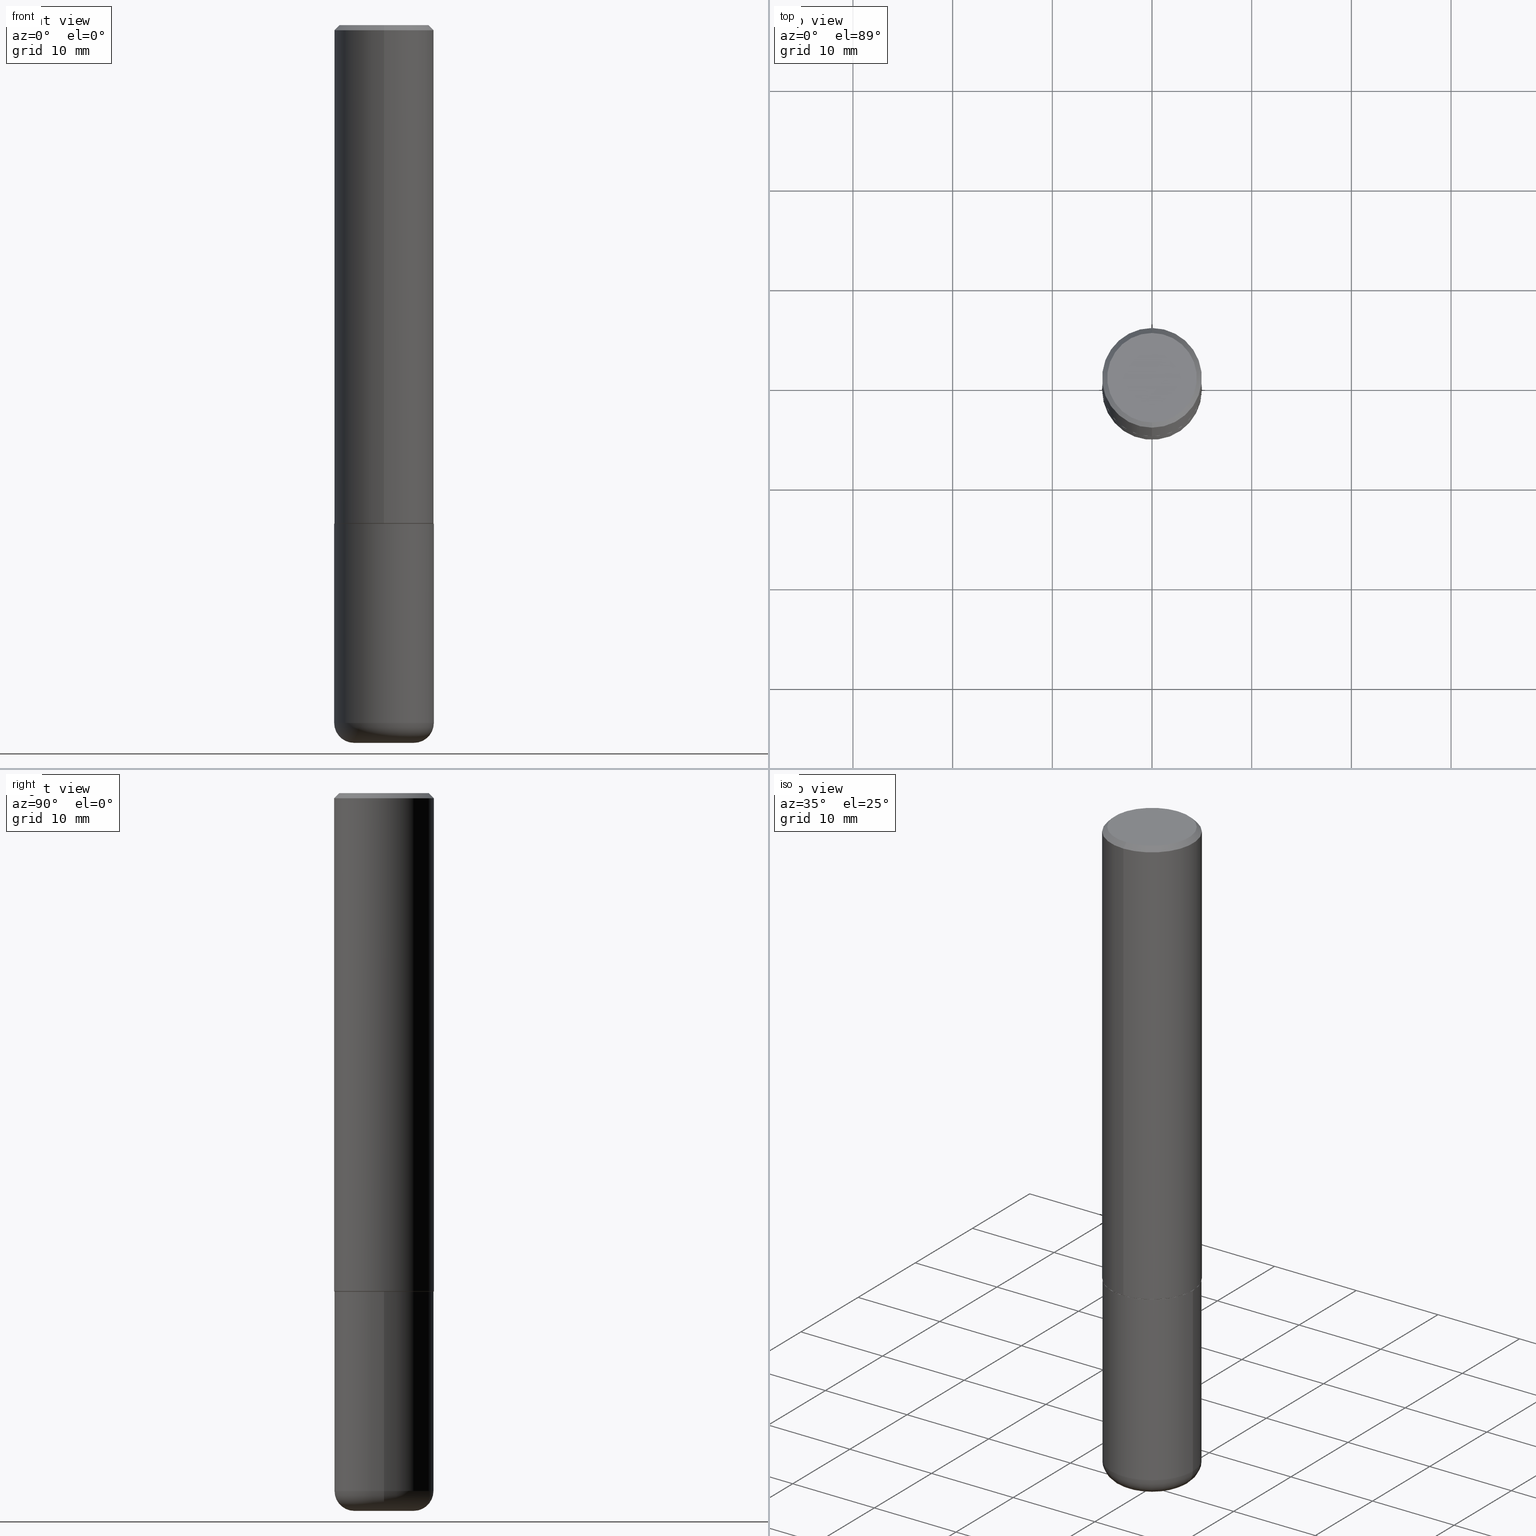
[diagram: canonical four-view strip — front | top / right | iso, engineering-drawing reading convention]
A machine part, canonical four-view strip (front | top / right | iso — engineering-drawing reading convention). The complete STEP part file that produces these views, byte-faithful:
ISO-10303-21;
HEADER;
FILE_DESCRIPTION (( 'STEP AP203' ),
    '1' );
FILE_NAME ('46890.STEP',
    '2024-03-05T06:12:10',
    ( '' ),
    ( '' ),
    'SwSTEP 2.0',
    'SolidWorks 2023',
    '' );
FILE_SCHEMA (( 'CONFIG_CONTROL_DESIGN' ));
ENDSEC;

DATA;
#1 = CARTESIAN_POINT ( 'NONE',  ( 0.1968500000000000250, -1.374596203102541608E-15, 9.598753983154300858E-30 ) ) ;
#2 = EDGE_CURVE ( 'NONE', #107, #362, #76, .T. ) ;
#3 = COORDINATED_UNIVERSAL_TIME_OFFSET ( 5, 0, .BEHIND. ) ;
#4 = CARTESIAN_POINT ( 'NONE',  ( 1.234936949548816590E-15, 0.1768500000000000627, -6.366182382972411724E-16 ) ) ;
#5 = AXIS2_PLACEMENT_3D ( 'NONE', #159, #407, #84 ) ;
#6 = APPROVAL_PERSON_ORGANIZATION ( #358, #256, #382 ) ;
#7 = APPLICATION_PROTOCOL_DEFINITION ( 'international standard', 'config_control_design', 1994, #355 ) ;
#8 = APPROVAL_ROLE ( '' ) ;
#9 = ORIENTED_EDGE ( 'NONE', *, *, #80, .F. ) ;
#10 = CARTESIAN_POINT ( 'NONE',  ( 1.374596203102542003E-15, 0.1968499999999999417, -0.02000000000000072900 ) ) ;
#11 = APPLICATION_PROTOCOL_DEFINITION ( 'international standard', 'config_control_design', 1994, #120 ) ;
#12 = ADVANCED_FACE ( 'NONE', ( #112 ), #283, .F. ) ;
#13 = ORIENTED_EDGE ( 'NONE', *, *, #2, .F. ) ;
#14 = CARTESIAN_POINT ( 'NONE',  ( 0.000000000000000000, 0.000000000000000000, 0.000000000000000000 ) ) ;
#15 = CLOSED_SHELL ( 'NONE', ( #117, #285, #160, #145, #329, #124, #259, #56 ) ) ;
#16 = CARTESIAN_POINT ( 'NONE',  ( -1.367613240424807079E-15, -0.1958500000000068797, -1.968499999999999028 ) ) ;
#17 = DIRECTION ( 'NONE',  ( 6.982962677686265922E-15, 1.000000000000000000, -3.490819278536432204E-15 ) ) ;
#18 = DIRECTION ( 'NONE',  ( 1.000000000000000000, -6.982962677686265922E-15, 4.876176775795935793E-29 ) ) ;
#19 = ORIENTED_EDGE ( 'NONE', *, *, #337, .F. ) ;
#20 = CC_DESIGN_DATE_AND_TIME_ASSIGNMENT ( #171, #275, ( #333 ) ) ;
#21 = ORIENTED_EDGE ( 'NONE', *, *, #404, .F. ) ;
#22 = AXIS2_PLACEMENT_3D ( 'NONE', #262, #392, #241 ) ;
#23 = DIRECTION ( 'NONE',  ( 2.445931120426352427E-29, -3.490819278536432204E-15, -1.000000000000000000 ) ) ;
#24 = EDGE_CURVE ( 'NONE', #341, #277, #289, .T. ) ;
#25 = EDGE_LOOP ( 'NONE', ( #43, #177, #338, #395 ) ) ;
#26 = ORIENTED_EDGE ( 'NONE', *, *, #69, .F. ) ;
#27 = CARTESIAN_POINT ( 'NONE',  ( -1.350489030861325429E-15, -0.1968500000000000805, -0.01999999999999935510 ) ) ;
#28 = CYLINDRICAL_SURFACE ( 'NONE', #30, 0.1968500000000001082 ) ;
#29 = FACE_OUTER_BOUND ( 'NONE', #248, .T. ) ;
#30 = AXIS2_PLACEMENT_3D ( 'NONE', #38, #237, #67 ) ;
#31 = CC_DESIGN_SECURITY_CLASSIFICATION ( #333, ( #99 ) ) ;
#32 = CARTESIAN_POINT ( 'NONE',  ( 1.398703375343782834E-15, 0.1968499999999934191, -1.967500000000000471 ) ) ;
#33 = ORIENTED_EDGE ( 'NONE', *, *, #408, .T. ) ;
#34 = DIRECTION ( 'NONE',  ( -2.445931120426352427E-29, 3.490819278536432204E-15, 1.000000000000000000 ) ) ;
#35 = CARTESIAN_POINT ( 'NONE',  ( 0.1181500000000000189, -1.072199004345341108E-14, -2.834599999999999120 ) ) ;
#36 = DIRECTION ( 'NONE',  ( 2.438088387897960049E-29, -3.491481338843145188E-15, -1.000000000000000000 ) ) ;
#37 = CIRCLE ( 'NONE', #332, 0.1958499999999999963 ) ;
#38 = CARTESIAN_POINT ( 'NONE',  ( 0.000000000000000000, 0.000000000000000000, 0.000000000000000000 ) ) ;
#39 = EDGE_CURVE ( 'NONE', #189, #149, #37, .T. ) ;
#40 = PERSON_AND_ORGANIZATION ( #219, #306 ) ;
#41 = MANIFOLD_SOLID_BREP ( 'Body-Move/Copy2[2]', #15 ) ;
#42 = LOCAL_TIME ( 1, 12, 10.00000000000000000, #400 ) ;
#43 = ORIENTED_EDGE ( 'NONE', *, *, #167, .F. ) ;
#44 = ORIENTED_EDGE ( 'NONE', *, *, #360, .T. ) ;
#45 = PERSON_AND_ORGANIZATION ( #219, #306 ) ;
#46 = CC_DESIGN_DATE_AND_TIME_ASSIGNMENT ( #108, #331, ( #208 ) ) ;
#47 = APPROVAL_DATE_TIME ( #139, #393 ) ;
#48 = AXIS2_PLACEMENT_3D ( 'NONE', #350, #254, #229 ) ;
#49 = AXIS2_PLACEMENT_3D ( 'NONE', #165, #413, #414 ) ;
#50 = AXIS2_PLACEMENT_3D ( 'NONE', #14, #244, #71 ) ;
#51 = ADVANCED_FACE ( 'NONE', ( #62 ), #168, .T. ) ;
#52 = EDGE_LOOP ( 'NONE', ( #316, #54 ) ) ;
#53 = DESIGN_CONTEXT ( 'detailed design', #120, 'design' ) ;
#54 = ORIENTED_EDGE ( 'NONE', *, *, #218, .T. ) ;
#55 = VERTEX_POINT ( 'NONE', #319 ) ;
#56 = ADVANCED_FACE ( 'NONE', ( #131 ), #96, .F. ) ;
#57 = AXIS2_PLACEMENT_3D ( 'NONE', #144, #274, #153 ) ;
#58 = LOCAL_TIME ( 1, 12, 10.00000000000000000, #267 ) ;
#59 = CYLINDRICAL_SURFACE ( 'NONE', #105, 0.1968500000000000250 ) ;
#60 = DIRECTION ( 'NONE',  ( -2.445468806185136877E-29, 3.491481338843145188E-15, 1.000000000000000000 ) ) ;
#61 = FACE_OUTER_BOUND ( 'NONE', #25, .T. ) ;
#62 = FACE_OUTER_BOUND ( 'NONE', #351, .T. ) ;
#63 = PLANE ( 'NONE',  #173 ) ;
#64 = EDGE_LOOP ( 'NONE', ( #178, #345, #9, #142 ) ) ;
#65 = ADVANCED_FACE ( 'NONE', ( #29 ), #59, .T. ) ;
#66 = DIRECTION ( 'NONE',  ( 1.000000000000000000, -6.982962677686269077E-15, 4.883557194083113462E-29 ) ) ;
#67 = DIRECTION ( 'NONE',  ( -6.982962677686265922E-15, -1.000000000000000000, 3.490819278536432204E-15 ) ) ;
#68 = DIRECTION ( 'NONE',  ( 7.105427357601001859E-15, 1.000000000000000000, -3.491481338843145583E-15 ) ) ;
#69 = EDGE_CURVE ( 'NONE', #149, #277, #375, .T. ) ;
#70 = VECTOR ( 'NONE', #83, 39.37007874015748143 ) ;
#71 = DIRECTION ( 'NONE',  ( 1.000000000000000000, 0.000000000000000000, 0.000000000000000000 ) ) ;
#72 = ORIENTED_EDGE ( 'NONE', *, *, #415, .T. ) ;
#73 = EDGE_CURVE ( 'NONE', #102, #363, #98, .T. ) ;
#74 = CIRCLE ( 'NONE', #384, 0.1968500000000000250 ) ;
#75 = APPROVAL_PERSON_ORGANIZATION ( #101, #311, #8 ) ;
#76 = LINE ( 'NONE', #10, #417 ) ;
#77 = PERSON_AND_ORGANIZATION ( #219, #306 ) ;
#78 = EDGE_LOOP ( 'NONE', ( #296, #227 ) ) ;
#79 = CALENDAR_DATE ( 2024, 5, 3 ) ;
#80 = EDGE_CURVE ( 'NONE', #340, #55, #339, .T. ) ;
#81 = AXIS2_PLACEMENT_3D ( 'NONE', #4, #298, #17 ) ;
#82 = APPROVAL_PERSON_ORGANIZATION ( #336, #393, #369 ) ;
#83 = DIRECTION ( 'NONE',  ( -4.937700262164969294E-15, -0.7071067811866054154, 0.7071067811864896191 ) ) ;
#84 = DIRECTION ( 'NONE',  ( 6.982962677686265133E-15, 1.000000000000000000, -3.491137977679279424E-15 ) ) ;
#85 = EDGE_CURVE ( 'NONE', #189, #341, #397, .T. ) ;
#86 = AXIS2_PLACEMENT_3D ( 'NONE', #290, #418, #291 ) ;
#87 = EDGE_LOOP ( 'NONE', ( #21, #303 ) ) ;
#88 = DIRECTION ( 'NONE',  ( -2.445468806185136597E-29, 3.491481338843145583E-15, 1.000000000000000000 ) ) ;
#89 = CC_DESIGN_PERSON_AND_ORGANIZATION_ASSIGNMENT ( #45, #182, ( #99 ) ) ;
#90 = COORDINATED_UNIVERSAL_TIME_OFFSET ( 5, 0, .BEHIND. ) ;
#91 = DIRECTION ( 'NONE',  ( -2.445468806185136597E-29, 3.491481338843145583E-15, 1.000000000000000000 ) ) ;
#92 = AXIS2_PLACEMENT_3D ( 'NONE', #357, #34, #164 ) ;
#93 = CARTESIAN_POINT ( 'NONE',  ( 4.812369479438847265E-29, -6.868186930520428742E-15, -1.967499999999999805 ) ) ;
#94 = EDGE_CURVE ( 'NONE', #368, #340, #154, .T. ) ;
#95 = DIRECTION ( 'NONE',  ( -1.000000000000000000, 6.982962677686265922E-15, -4.876176775795935793E-29 ) ) ;
#96 = PLANE ( 'NONE',  #81 ) ;
#97 = CARTESIAN_POINT ( 'NONE',  ( 6.739467482965618232E-29, -9.622173421717824390E-15, -2.755900000000000016 ) ) ;
#98 = CIRCLE ( 'NONE', #313, 0.1968500000000000250 ) ;
#99 = PRODUCT_DEFINITION_FORMATION_WITH_SPECIFIED_SOURCE ( 'ANY', '', #190, .NOT_KNOWN. ) ;
#100 = DATE_AND_TIME ( #335, #106 ) ;
#101 = PERSON_AND_ORGANIZATION ( #219, #306 ) ;
#102 = VERTEX_POINT ( 'NONE', #328 ) ;
#103 = CARTESIAN_POINT ( 'NONE',  ( 1.391597947986204111E-15, 0.1958499999999931407, -1.968500000000000583 ) ) ;
#104 = PERSON_AND_ORGANIZATION_ROLE ( 'creator' ) ;
#105 = AXIS2_PLACEMENT_3D ( 'NONE', #187, #199, #18 ) ;
#106 = LOCAL_TIME ( 1, 12, 10.00000000000000000, #3 ) ;
#107 = VERTEX_POINT ( 'NONE', #176 ) ;
#108 = DATE_AND_TIME ( #264, #58 ) ;
#109 = ORIENTED_EDGE ( 'NONE', *, *, #73, .F. ) ;
#110 = ORIENTED_EDGE ( 'NONE', *, *, #249, .F. ) ;
#111 = EDGE_CURVE ( 'NONE', #363, #102, #273, .T. ) ;
#112 = FACE_OUTER_BOUND ( 'NONE', #183, .T. ) ;
#113 = ORIENTED_EDGE ( 'NONE', *, *, #367, .T. ) ;
#114 = APPROVAL_STATUS ( 'not_yet_approved' ) ;
#115 = VECTOR ( 'NONE', #252, 39.37007874015748143 ) ;
#116 = CARTESIAN_POINT ( 'NONE',  ( -1.367613240424807079E-15, -0.1958500000000068797, -1.968499999999999028 ) ) ;
#117 = ADVANCED_FACE ( 'NONE', ( #222 ), #279, .T. ) ;
#118 = ORIENTED_EDGE ( 'NONE', *, *, #24, .F. ) ;
#119 = AXIS2_PLACEMENT_3D ( 'NONE', #197, #320, #226 ) ;
#120 = APPLICATION_CONTEXT ( 'configuration controlled 3d designs of mechanical parts and assemblies' ) ;
#121 = AXIS2_PLACEMENT_3D ( 'NONE', #166, #68, #386 ) ;
#122 = DIRECTION ( 'NONE',  ( -6.982962677686265922E-15, -1.000000000000000000, 4.184602492209747448E-15 ) ) ;
#123 = DIRECTION ( 'NONE',  ( -6.982962677686265922E-15, -1.000000000000000000, 4.184602492209747448E-15 ) ) ;
#124 = ADVANCED_FACE ( 'NONE', ( #352 ), #401, .T. ) ;
#125 = CARTESIAN_POINT ( 'NONE',  ( 6.739467482965618232E-29, -9.622173421717824390E-15, -2.755900000000000016 ) ) ;
#126 = DIRECTION ( 'NONE',  ( -2.445931120426352427E-29, 3.490819278536432204E-15, 1.000000000000000000 ) ) ;
#127 = ORIENTED_EDGE ( 'NONE', *, *, #39, .T. ) ;
#128 = DIRECTION ( 'NONE',  ( 1.000000000000000000, -6.982962677686265922E-15, 0.000000000000000000 ) ) ;
#129 = CARTESIAN_POINT ( 'NONE',  ( -1.374596203102495065E-15, -0.1968500000000071026, -1.967499999999998916 ) ) ;
#130 = CIRCLE ( 'NONE', #365, 0.1768500000000000627 ) ;
#131 = FACE_OUTER_BOUND ( 'NONE', #52, .T. ) ;
#132 = ADVANCED_FACE ( 'NONE', ( #228 ), #157, .T. ) ;
#133 = DIRECTION ( 'NONE',  ( -6.982962677686265133E-15, -1.000000000000000000, 3.491137977679279424E-15 ) ) ;
#134 = DIRECTION ( 'NONE',  ( -2.445468806185136597E-29, 3.491481338843145583E-15, 1.000000000000000000 ) ) ;
#135 = VERTEX_POINT ( 'NONE', #373 ) ;
#136 = CARTESIAN_POINT ( 'NONE',  ( 4.891862240852715644E-31, -6.981638557072878903E-17, -0.02000000000000004205 ) ) ;
#137 = AXIS2_PLACEMENT_3D ( 'NONE', #152, #126, #122 ) ;
#138 = VECTOR ( 'NONE', #257, 39.37007874015748143 ) ;
#139 = DATE_AND_TIME ( #270, #169 ) ;
#140 = ORIENTED_EDGE ( 'NONE', *, *, #337, .T. ) ;
#141 = PERSON_AND_ORGANIZATION ( #219, #306 ) ;
#142 = ORIENTED_EDGE ( 'NONE', *, *, #94, .F. ) ;
#143 = DIRECTION ( 'NONE',  ( -2.445468806185136877E-29, 3.491481338843145188E-15, 1.000000000000000000 ) ) ;
#144 = CARTESIAN_POINT ( 'NONE',  ( 4.813905344975441835E-29, -6.872981015512731707E-15, -1.968500000000000139 ) ) ;
#145 = ADVANCED_FACE ( 'NONE', ( #61 ), #305, .T. ) ;
#146 = AXIS2_PLACEMENT_3D ( 'NONE', #377, #278, #123 ) ;
#147 = DIRECTION ( 'NONE',  ( 4.937700262164541731E-15, 0.7071067811865442421, -0.7071067811865507924 ) ) ;
#148 = CALENDAR_DATE ( 2024, 5, 3 ) ;
#149 = VERTEX_POINT ( 'NONE', #116 ) ;
#150 = ORIENTED_EDGE ( 'NONE', *, *, #367, .F. ) ;
#151 = EDGE_LOOP ( 'NONE', ( #370, #268, #163, #13 ) ) ;
#152 = CARTESIAN_POINT ( 'NONE',  ( 4.814815410559274308E-29, -6.871677749798965977E-15, -1.968499999999999694 ) ) ;
#153 = DIRECTION ( 'NONE',  ( 1.000000000000000000, -6.982962677686267499E-15, 0.000000000000000000 ) ) ;
#154 = CIRCLE ( 'NONE', #379, 0.07869999999999970075 ) ;
#155 = UNCERTAINTY_MEASURE_WITH_UNIT (LENGTH_MEASURE( 1.000000000000000082E-05 ), #396, 'distance_accuracy_value', 'NONE');
#156 = ORIENTED_EDGE ( 'NONE', *, *, #24, .T. ) ;
#157 = CYLINDRICAL_SURFACE ( 'NONE', #405, 0.1968500000000000250 ) ;
#158 = ORIENTED_EDGE ( 'NONE', *, *, #80, .T. ) ;
#159 = CARTESIAN_POINT ( 'NONE',  ( 4.891862240852715644E-31, -6.981638557072878903E-17, -0.02000000000000004205 ) ) ;
#160 = ADVANCED_FACE ( 'NONE', ( #343 ), #204, .T. ) ;
#161 = CARTESIAN_POINT ( 'NONE',  ( -1.374596203102542200E-15, -0.1968500000000001082, 6.871677749798970513E-16 ) ) ;
#162 = ORIENTED_EDGE ( 'NONE', *, *, #111, .F. ) ;
#163 = ORIENTED_EDGE ( 'NONE', *, *, #249, .T. ) ;
#164 = DIRECTION ( 'NONE',  ( -6.982962677686265922E-15, -1.000000000000000000, 3.490819278536432204E-15 ) ) ;
#165 = CARTESIAN_POINT ( 'NONE',  ( 4.814815410559274869E-29, -6.871677749798965977E-15, -1.968500000000000139 ) ) ;
#166 = CARTESIAN_POINT ( 'NONE',  ( -0.1181500000000000050, -8.782667179417266182E-15, -2.755900000000000016 ) ) ;
#167 = EDGE_CURVE ( 'NONE', #216, #135, #292, .T. ) ;
#168 = TOROIDAL_SURFACE ( 'NONE', #194, 0.1181500000000000050, 0.07869999999999967299 ) ;
#169 = LOCAL_TIME ( 1, 12, 10.00000000000000000, #293 ) ;
#170 = DIRECTION ( 'NONE',  ( -6.982962677686265922E-15, -1.000000000000000000, 4.163344669033670112E-15 ) ) ;
#171 = DATE_AND_TIME ( #148, #42 ) ;
#172 = CC_DESIGN_PERSON_AND_ORGANIZATION_ASSIGNMENT ( #141, #104, ( #99 ) ) ;
#173 = AXIS2_PLACEMENT_3D ( 'NONE', #321, #309, #95 ) ;
#174 = CIRCLE ( 'NONE', #121, 0.07869999999999970075 ) ;
#175 = ORIENTED_EDGE ( 'NONE', *, *, #69, .T. ) ;
#176 = CARTESIAN_POINT ( 'NONE',  ( 1.304766576325679099E-15, 0.1768500000000000627, -6.558850871853143044E-16 ) ) ;
#177 = ORIENTED_EDGE ( 'NONE', *, *, #347, .F. ) ;
#178 = ORIENTED_EDGE ( 'NONE', *, *, #307, .T. ) ;
#179 = SECURITY_CLASSIFICATION_LEVEL ( 'unclassified' ) ;
#180 = EDGE_CURVE ( 'NONE', #362, #135, #74, .T. ) ;
#181 = DIMENSIONAL_EXPONENTS ( 1.000000000000000000, 0.000000000000000000, 0.000000000000000000, 0.000000000000000000, 0.000000000000000000, 0.000000000000000000, 0.000000000000000000 ) ;
#182 = PERSON_AND_ORGANIZATION_ROLE ( 'design_supplier' ) ;
#183 = EDGE_LOOP ( 'NONE', ( #184, #403 ) ) ;
#184 = ORIENTED_EDGE ( 'NONE', *, *, #111, .T. ) ;
#185 = FACE_OUTER_BOUND ( 'NONE', #64, .T. ) ;
#186 = PRODUCT_RELATED_PRODUCT_CATEGORY ( 'detail', '', ( #190 ) ) ;
#187 = CARTESIAN_POINT ( 'NONE',  ( 0.000000000000000000, 0.000000000000000000, 0.000000000000000000 ) ) ;
#188 = CARTESIAN_POINT ( 'NONE',  ( 4.891862240852715644E-31, -6.981638557072878903E-17, -0.02000000000000004205 ) ) ;
#189 = VERTEX_POINT ( 'NONE', #215 ) ;
#190 = PRODUCT ( '46890', '46890', '', ( #211 ) ) ;
#191 = CARTESIAN_POINT ( 'NONE',  ( 0.000000000000000000, 0.000000000000000000, 0.000000000000000000 ) ) ;
#192 = DIRECTION ( 'NONE',  ( -6.982962677686265133E-15, -1.000000000000000000, 3.491137977679279424E-15 ) ) ;
#193 = DIRECTION ( 'NONE',  ( 1.000000000000000000, -6.982962677686265922E-15, 4.876176775795935793E-29 ) ) ;
#194 = AXIS2_PLACEMENT_3D ( 'NONE', #261, #207, #325 ) ;
#195 = LINE ( 'NONE', #161, #281 ) ;
#196 = VERTEX_POINT ( 'NONE', #366 ) ;
#197 = CARTESIAN_POINT ( 'NONE',  ( 4.812369479438847265E-29, -6.868186930520428742E-15, -1.967499999999999805 ) ) ;
#198 = PLANE ( 'NONE',  #49 ) ;
#199 = DIRECTION ( 'NONE',  ( -2.445468806185136597E-29, 3.491481338843145583E-15, 1.000000000000000000 ) ) ;
#200 = DIRECTION ( 'NONE',  ( -1.000000000000000000, 6.982962677686265922E-15, -4.876176775795935793E-29 ) ) ;
#201 = CC_DESIGN_PERSON_AND_ORGANIZATION_ASSIGNMENT ( #40, #238, ( #333 ) ) ;
#202 = FACE_OUTER_BOUND ( 'NONE', #87, .T. ) ;
#203 = LINE ( 'NONE', #1, #239 ) ;
#204 = CONICAL_SURFACE ( 'NONE', #371, 0.1968500000000000250, 0.7853981633974471688 ) ;
#205 = CIRCLE ( 'NONE', #359, 0.1968500000000000250 ) ;
#206 = ORIENTED_EDGE ( 'NONE', *, *, #399, .T. ) ;
#207 = DIRECTION ( 'NONE',  ( -2.445468806185136597E-29, 3.491481338843145583E-15, 1.000000000000000000 ) ) ;
#208 = PRODUCT_DEFINITION ( 'UNKNOWN', '', #99, #53 ) ;
#209 = DIRECTION ( 'NONE',  ( -6.982962677686266711E-15, -1.000000000000000000, 3.491481338843145583E-15 ) ) ;
#210 = CARTESIAN_POINT ( 'NONE',  ( -0.1968500000000000250, 1.398703375343757393E-15, -9.682923725166783677E-30 ) ) ;
#211 = MECHANICAL_CONTEXT ( 'NONE', #355, 'mechanical' ) ;
#212 = AXIS2_PLACEMENT_3D ( 'NONE', #284, #91, #128 ) ;
#213 = DIRECTION ( 'NONE',  ( -6.982962677686265922E-15, -1.000000000000000000, 3.490819278536432204E-15 ) ) ;
#214 = APPROVAL_STATUS ( 'not_yet_approved' ) ;
#215 = CARTESIAN_POINT ( 'NONE',  ( 1.395150661665005404E-15, 0.1958499999999931407, -1.968500000000000583 ) ) ;
#216 = VERTEX_POINT ( 'NONE', #416 ) ;
#217 = ORIENTED_EDGE ( 'NONE', *, *, #374, .F. ) ;
#218 = EDGE_CURVE ( 'NONE', #216, #107, #130, .T. ) ;
#219 = PERSON ( 'UNSPECIFIED', 'UNSPECIFIED', 'UNSPECIFIED', ('UNSPECIFIED'), ('UNSPECIFIED'), ('UNSPECIFIED') ) ;
#220 = EDGE_LOOP ( 'NONE', ( #251, #127, #175, #118 ) ) ;
#221 = ORIENTED_EDGE ( 'NONE', *, *, #245, .F. ) ;
#222 = FACE_OUTER_BOUND ( 'NONE', #230, .T. ) ;
#223 = CIRCLE ( 'NONE', #240, 0.1968500000000000250 ) ;
#224 = CC_DESIGN_APPROVAL ( #311, ( #99 ) ) ;
#225 = ADVANCED_FACE ( 'NONE', ( #185 ), #294, .T. ) ;
#226 = DIRECTION ( 'NONE',  ( -6.982962677686265922E-15, -1.000000000000000000, 4.163344669033670112E-15 ) ) ;
#227 = ORIENTED_EDGE ( 'NONE', *, *, #360, .F. ) ;
#228 = FACE_OUTER_BOUND ( 'NONE', #295, .T. ) ;
#229 = DIRECTION ( 'NONE',  ( -6.982962677686265922E-15, -1.000000000000000000, 3.490819278536432204E-15 ) ) ;
#230 = EDGE_LOOP ( 'NONE', ( #246, #300, #247, #26 ) ) ;
#231 = SHAPE_DEFINITION_REPRESENTATION ( #299, #302 ) ;
#232 = VECTOR ( 'NONE', #288, 39.37007874015748143 ) ;
#233 = FACE_OUTER_BOUND ( 'NONE', #376, .T. ) ;
#234 = CC_DESIGN_APPROVAL ( #393, ( #208 ) ) ;
#235 = DIRECTION ( 'NONE',  ( -2.445931120426352427E-29, 3.490819278536432204E-15, 1.000000000000000000 ) ) ;
#236 = CARTESIAN_POINT ( 'NONE',  ( 4.813905344975441835E-29, -6.872981015512731707E-15, -1.968500000000000139 ) ) ;
#237 = DIRECTION ( 'NONE',  ( -2.445931120426352427E-29, 3.490819278536432204E-15, 1.000000000000000000 ) ) ;
#238 = PERSON_AND_ORGANIZATION_ROLE ( 'classification_officer' ) ;
#239 = VECTOR ( 'NONE', #60, 39.37007874015748143 ) ;
#240 = AXIS2_PLACEMENT_3D ( 'NONE', #136, #356, #192 ) ;
#241 = DIRECTION ( 'NONE',  ( 1.000000000000000000, -6.982962677686267499E-15, 0.000000000000000000 ) ) ;
#242 = LENGTH_MEASURE_WITH_UNIT ( LENGTH_MEASURE( 0.02539999999999999897 ), #243 );
#243 =( LENGTH_UNIT ( ) NAMED_UNIT ( * ) SI_UNIT ( $, .METRE. ) );
#244 = DIRECTION ( 'NONE',  ( 0.000000000000000000, 0.000000000000000000, 1.000000000000000000 ) ) ;
#245 = EDGE_CURVE ( 'NONE', #340, #363, #203, .T. ) ;
#246 = ORIENTED_EDGE ( 'NONE', *, *, #404, .T. ) ;
#247 = ORIENTED_EDGE ( 'NONE', *, *, #399, .F. ) ;
#248 = EDGE_LOOP ( 'NONE', ( #158, #72, #162, #221 ) ) ;
#249 = EDGE_CURVE ( 'NONE', #135, #362, #223, .T. ) ;
#250 = CARTESIAN_POINT ( 'NONE',  ( 4.891862240852715644E-31, -6.981638557072878903E-17, -0.02000000000000004205 ) ) ;
#251 = ORIENTED_EDGE ( 'NONE', *, *, #85, .F. ) ;
#252 = DIRECTION ( 'NONE',  ( -4.851104656540957964E-15, -0.7071067811865491270, -0.7071067811865459074 ) ) ;
#253 = ORIENTED_EDGE ( 'NONE', *, *, #94, .T. ) ;
#254 = DIRECTION ( 'NONE',  ( -2.445931120426352427E-29, 3.490819278536432204E-15, 1.000000000000000000 ) ) ;
#255 = CARTESIAN_POINT ( 'NONE',  ( 6.931925878012386396E-29, -9.896953003084777729E-15, -2.834599999999999120 ) ) ;
#256 = APPROVAL ( #114, 'UNSPECIFIED' ) ;
#257 = DIRECTION ( 'NONE',  ( -2.445931120426352427E-29, 3.490819278536432204E-15, 1.000000000000000000 ) ) ;
#258 = CARTESIAN_POINT ( 'NONE',  ( 1.374596203102542003E-15, 0.1968499999999999417, -0.02000000000000072900 ) ) ;
#259 = ADVANCED_FACE ( 'NONE', ( #202 ), #198, .F. ) ;
#260 = CYLINDRICAL_SURFACE ( 'NONE', #48, 0.1968500000000001082 ) ;
#261 = CARTESIAN_POINT ( 'NONE',  ( 6.739467482965618232E-29, -9.622173421717824390E-15, -2.755900000000000016 ) ) ;
#262 = CARTESIAN_POINT ( 'NONE',  ( 6.739467482965618232E-29, -9.622173421717824390E-15, -2.755900000000000016 ) ) ;
#263 = DIRECTION ( 'NONE',  ( -2.445931120426352427E-29, 3.490819278536432204E-15, 1.000000000000000000 ) ) ;
#264 = CALENDAR_DATE ( 2024, 5, 3 ) ;
#265 = AXIS2_PLACEMENT_3D ( 'NONE', #236, #36, #200 ) ;
#266 = CIRCLE ( 'NONE', #212, 0.1181500000000000189 ) ;
#267 = COORDINATED_UNIVERSAL_TIME_OFFSET ( 5, 0, .BEHIND. ) ;
#268 = ORIENTED_EDGE ( 'NONE', *, *, #167, .T. ) ;
#269 = DIRECTION ( 'NONE',  ( -2.445468806185136597E-29, 3.491481338843145583E-15, 1.000000000000000000 ) ) ;
#270 = CALENDAR_DATE ( 2024, 5, 3 ) ;
#271 = CC_DESIGN_PERSON_AND_ORGANIZATION_ASSIGNMENT ( #77, #398, ( #208 ) ) ;
#272 =( NAMED_UNIT ( * ) PLANE_ANGLE_UNIT ( ) SI_UNIT ( $, .RADIAN. ) );
#273 = CIRCLE ( 'NONE', #57, 0.1968500000000000250 ) ;
#274 = DIRECTION ( 'NONE',  ( -2.445468806185136597E-29, 3.491481338843145583E-15, 1.000000000000000000 ) ) ;
#275 = DATE_TIME_ROLE ( 'classification_date' ) ;
#276 = DATE_AND_TIME ( #79, #314 ) ;
#277 = VERTEX_POINT ( 'NONE', #129 ) ;
#278 = DIRECTION ( 'NONE',  ( -2.445931120426352427E-29, 3.490819278536432204E-15, 1.000000000000000000 ) ) ;
#279 = CONICAL_SURFACE ( 'NONE', #146, 0.1958499999999999963, 0.7853981633975336552 ) ;
#280 = EDGE_LOOP ( 'NONE', ( #150, #156, #140, #387 ) ) ;
#281 = VECTOR ( 'NONE', #389, 39.37007874015748143 ) ;
#282 = CIRCLE ( 'NONE', #92, 0.1768500000000000627 ) ;
#283 = PLANE ( 'NONE',  #265 ) ;
#284 = CARTESIAN_POINT ( 'NONE',  ( 6.931925878012386396E-29, -9.896953003084777729E-15, -2.834599999999999120 ) ) ;
#285 = ADVANCED_FACE ( 'NONE', ( #233 ), #260, .T. ) ;
#286 = FACE_OUTER_BOUND ( 'NONE', #78, .T. ) ;
#287 = CARTESIAN_POINT ( 'NONE',  ( 0.1968500000000000250, -8.247577218615273316E-15, -1.968500000000000139 ) ) ;
#288 = DIRECTION ( 'NONE',  ( 5.024295867788490741E-15, 0.7071067811866103003, 0.7071067811864847341 ) ) ;
#289 = CIRCLE ( 'NONE', #119, 0.1968500000000002470 ) ;
#290 = CARTESIAN_POINT ( 'NONE',  ( 4.814815410559274308E-29, -6.871677749798965977E-15, -1.968499999999999694 ) ) ;
#291 = DIRECTION ( 'NONE',  ( -6.982962677686265922E-15, -1.000000000000000000, 4.184602492209747448E-15 ) ) ;
#292 = LINE ( 'NONE', #27, #115 ) ;
#293 = COORDINATED_UNIVERSAL_TIME_OFFSET ( 5, 0, .BEHIND. ) ;
#294 = TOROIDAL_SURFACE ( 'NONE', #410, 0.1181500000000000050, 0.07869999999999967299 ) ;
#295 = EDGE_LOOP ( 'NONE', ( #390, #33, #342, #109 ) ) ;
#296 = ORIENTED_EDGE ( 'NONE', *, *, #307, .F. ) ;
#297 = PERSON_AND_ORGANIZATION_ROLE ( 'design_owner' ) ;
#298 = DIRECTION ( 'NONE',  ( 2.445931120426351866E-29, -3.490819278536432204E-15, -1.000000000000000000 ) ) ;
#299 = PRODUCT_DEFINITION_SHAPE ( 'NONE', 'NONE',  #208 ) ;
#300 = ORIENTED_EDGE ( 'NONE', *, *, #85, .T. ) ;
#301 = CLOSED_SHELL ( 'NONE', ( #65, #225, #12, #132, #51, #322 ) ) ;
#302 = ADVANCED_BREP_SHAPE_REPRESENTATION ( '46890', ( #312, #41, #50 ), #411 ) ;
#303 = ORIENTED_EDGE ( 'NONE', *, *, #39, .F. ) ;
#304 = CARTESIAN_POINT ( 'NONE',  ( 9.425077057577917544E-46, -1.345141750702668251E-31, -3.853369777614598048E-17 ) ) ;
#305 = CONICAL_SURFACE ( 'NONE', #5, 0.1968500000000000250, 0.7853981633974471688 ) ;
#306 = ORGANIZATION ( 'UNSPECIFIED', 'UNSPECIFIED', '' ) ;
#307 = EDGE_CURVE ( 'NONE', #368, #196, #391, .T. ) ;
#308 = DIRECTION ( 'NONE',  ( 6.982962677686265133E-15, 1.000000000000000000, -3.491137977679279424E-15 ) ) ;
#309 = DIRECTION ( 'NONE',  ( 2.438088387897960049E-29, -3.491481338843145188E-15, -1.000000000000000000 ) ) ;
#310 = APPROVAL_DATE_TIME ( #276, #256 ) ;
#311 = APPROVAL ( #214, 'UNSPECIFIED' ) ;
#312 = MANIFOLD_SOLID_BREP ( 'Body-Move/Copy2[1]', #301 ) ;
#313 = AXIS2_PLACEMENT_3D ( 'NONE', #330, #269, #394 ) ;
#314 = LOCAL_TIME ( 1, 12, 10.00000000000000000, #90 ) ;
#315 = CARTESIAN_POINT ( 'NONE',  ( 0.1968499999999998307, -1.099676962482036600E-14, -2.755900000000000016 ) ) ;
#316 = ORIENTED_EDGE ( 'NONE', *, *, #347, .T. ) ;
#317 = DIRECTION ( 'NONE',  ( -6.982962677686265922E-15, -1.000000000000000000, 4.184602492209747448E-15 ) ) ;
#318 = DIRECTION ( 'NONE',  ( 1.000000000000000000, -6.982962677686265922E-15, 0.000000000000000000 ) ) ;
#319 = CARTESIAN_POINT ( 'NONE',  ( -0.1968499999999998307, -8.223470046374068969E-15, -2.755900000000000016 ) ) ;
#320 = DIRECTION ( 'NONE',  ( -2.445931120426352427E-29, 3.490819278536432204E-15, 1.000000000000000000 ) ) ;
#321 = CARTESIAN_POINT ( 'NONE',  ( 1.608536513484406626E-28, 3.211292994106457270E-15, -2.834599999999999120 ) ) ;
#322 = ADVANCED_FACE ( 'NONE', ( #286 ), #63, .T. ) ;
#323 = FACE_OUTER_BOUND ( 'NONE', #280, .T. ) ;
#324 = APPROVAL_DATE_TIME ( #100, #311 ) ;
#325 = DIRECTION ( 'NONE',  ( 1.000000000000000000, -6.982962677686269077E-15, 4.883557194083113462E-29 ) ) ;
#326 = CARTESIAN_POINT ( 'NONE',  ( 0.1181500000000000050, -1.044721046208645774E-14, -2.755900000000000016 ) ) ;
#327 = PERSON_AND_ORGANIZATION ( #219, #306 ) ;
#328 = CARTESIAN_POINT ( 'NONE',  ( -0.1968500000000000250, -6.848873843271521050E-15, -1.968500000000000139 ) ) ;
#329 = ADVANCED_FACE ( 'NONE', ( #323 ), #28, .T. ) ;
#330 = CARTESIAN_POINT ( 'NONE',  ( 4.813905344975441835E-29, -6.872981015512731707E-15, -1.968500000000000139 ) ) ;
#331 = DATE_TIME_ROLE ( 'creation_date' ) ;
#332 = AXIS2_PLACEMENT_3D ( 'NONE', #409, #349, #317 ) ;
#333 = SECURITY_CLASSIFICATION ( '', '', #179 ) ;
#334 = ORIENTED_EDGE ( 'NONE', *, *, #408, .F. ) ;
#335 = CALENDAR_DATE ( 2024, 5, 3 ) ;
#336 = PERSON_AND_ORGANIZATION ( #219, #306 ) ;
#337 = EDGE_CURVE ( 'NONE', #277, #135, #195, .T. ) ;
#338 = ORIENTED_EDGE ( 'NONE', *, *, #2, .T. ) ;
#339 = CIRCLE ( 'NONE', #22, 0.1968500000000000250 ) ;
#340 = VERTEX_POINT ( 'NONE', #315 ) ;
#341 = VERTEX_POINT ( 'NONE', #32 ) ;
#342 = ORIENTED_EDGE ( 'NONE', *, *, #245, .T. ) ;
#343 = FACE_OUTER_BOUND ( 'NONE', #151, .T. ) ;
#344 = CC_DESIGN_PERSON_AND_ORGANIZATION_ASSIGNMENT ( #327, #297, ( #190 ) ) ;
#345 = ORIENTED_EDGE ( 'NONE', *, *, #374, .T. ) ;
#346 = LINE ( 'NONE', #210, #354 ) ;
#347 = EDGE_CURVE ( 'NONE', #107, #216, #282, .T. ) ;
#348 = DIRECTION ( 'NONE',  ( -2.445468806185136597E-29, 3.491481338843145583E-15, 1.000000000000000000 ) ) ;
#349 = DIRECTION ( 'NONE',  ( -2.445931120426352427E-29, 3.490819278536432204E-15, 1.000000000000000000 ) ) ;
#350 = CARTESIAN_POINT ( 'NONE',  ( 0.000000000000000000, 0.000000000000000000, 0.000000000000000000 ) ) ;
#351 = EDGE_LOOP ( 'NONE', ( #217, #44, #253, #334 ) ) ;
#352 = FACE_OUTER_BOUND ( 'NONE', #220, .T. ) ;
#353 = AXIS2_PLACEMENT_3D ( 'NONE', #255, #381, #318 ) ;
#354 = VECTOR ( 'NONE', #143, 39.37007874015748143 ) ;
#355 = APPLICATION_CONTEXT ( 'configuration controlled 3d designs of mechanical parts and assemblies' ) ;
#356 = DIRECTION ( 'NONE',  ( -2.445931120426352427E-29, 3.490819278536432204E-15, 1.000000000000000000 ) ) ;
#357 = CARTESIAN_POINT ( 'NONE',  ( 9.425077057577917544E-46, -1.345141750702668251E-31, -3.853369777614598048E-17 ) ) ;
#358 = PERSON_AND_ORGANIZATION ( #219, #306 ) ;
#359 = AXIS2_PLACEMENT_3D ( 'NONE', #97, #134, #388 ) ;
#360 = EDGE_CURVE ( 'NONE', #196, #368, #266, .T. ) ;
#361 = DIRECTION ( 'NONE',  ( 1.000000000000000000, -6.982962677686271444E-15, 0.000000000000000000 ) ) ;
#362 = VERTEX_POINT ( 'NONE', #258 ) ;
#363 = VERTEX_POINT ( 'NONE', #287 ) ;
#364 = APPROVAL_STATUS ( 'not_yet_approved' ) ;
#365 = AXIS2_PLACEMENT_3D ( 'NONE', #304, #263, #213 ) ;
#366 = CARTESIAN_POINT ( 'NONE',  ( -0.1181500000000000189, -8.640458403579145034E-15, -2.834599999999999120 ) ) ;
#367 = EDGE_CURVE ( 'NONE', #341, #362, #383, .T. ) ;
#368 = VERTEX_POINT ( 'NONE', #35 ) ;
#369 = APPROVAL_ROLE ( '' ) ;
#370 = ORIENTED_EDGE ( 'NONE', *, *, #218, .F. ) ;
#371 = AXIS2_PLACEMENT_3D ( 'NONE', #250, #23, #308 ) ;
#372 = CIRCLE ( 'NONE', #86, 0.1958499999999999963 ) ;
#373 = CARTESIAN_POINT ( 'NONE',  ( -1.350489030861325429E-15, -0.1968500000000000805, -0.01999999999999935510 ) ) ;
#374 = EDGE_CURVE ( 'NONE', #196, #55, #174, .T. ) ;
#375 = LINE ( 'NONE', #16, #70 ) ;
#376 = EDGE_LOOP ( 'NONE', ( #206, #113, #110, #19 ) ) ;
#377 = CARTESIAN_POINT ( 'NONE',  ( 4.814815410559274308E-29, -6.871677749798965977E-15, -1.968499999999999694 ) ) ;
#378 = DIRECTION ( 'NONE',  ( -2.445931120426352427E-29, 3.490819278536432204E-15, 1.000000000000000000 ) ) ;
#379 = AXIS2_PLACEMENT_3D ( 'NONE', #326, #209, #361 ) ;
#380 = AXIS2_PLACEMENT_3D ( 'NONE', #93, #235, #170 ) ;
#381 = DIRECTION ( 'NONE',  ( -2.445468806185136597E-29, 3.491481338843145583E-15, 1.000000000000000000 ) ) ;
#382 = APPROVAL_ROLE ( '' ) ;
#383 = LINE ( 'NONE', #412, #138 ) ;
#384 = AXIS2_PLACEMENT_3D ( 'NONE', #188, #378, #133 ) ;
#385 = CC_DESIGN_APPROVAL ( #256, ( #333 ) ) ;
#386 = DIRECTION ( 'NONE',  ( -1.000000000000000000, 7.105427357600995548E-15, 0.000000000000000000 ) ) ;
#387 = ORIENTED_EDGE ( 'NONE', *, *, #180, .F. ) ;
#388 = DIRECTION ( 'NONE',  ( 1.000000000000000000, -6.982962677686267499E-15, 0.000000000000000000 ) ) ;
#389 = DIRECTION ( 'NONE',  ( -2.445931120426352427E-29, 3.490819278536432204E-15, 1.000000000000000000 ) ) ;
#390 = ORIENTED_EDGE ( 'NONE', *, *, #415, .F. ) ;
#391 = CIRCLE ( 'NONE', #353, 0.1181500000000000189 ) ;
#392 = DIRECTION ( 'NONE',  ( -2.445468806185136597E-29, 3.491481338843145583E-15, 1.000000000000000000 ) ) ;
#393 = APPROVAL ( #364, 'UNSPECIFIED' ) ;
#394 = DIRECTION ( 'NONE',  ( 1.000000000000000000, -6.982962677686267499E-15, 0.000000000000000000 ) ) ;
#395 = ORIENTED_EDGE ( 'NONE', *, *, #180, .T. ) ;
#396 =( CONVERSION_BASED_UNIT ( 'INCH', #242 ) LENGTH_UNIT ( ) NAMED_UNIT ( #181 ) );
#397 = LINE ( 'NONE', #103, #232 ) ;
#398 = PERSON_AND_ORGANIZATION_ROLE ( 'creator' ) ;
#399 = EDGE_CURVE ( 'NONE', #277, #341, #406, .T. ) ;
#400 = COORDINATED_UNIVERSAL_TIME_OFFSET ( 5, 0, .BEHIND. ) ;
#401 = CONICAL_SURFACE ( 'NONE', #137, 0.1958499999999999963, 0.7853981633975336552 ) ;
#402 =( NAMED_UNIT ( * ) SI_UNIT ( $, .STERADIAN. ) SOLID_ANGLE_UNIT ( ) );
#403 = ORIENTED_EDGE ( 'NONE', *, *, #73, .T. ) ;
#404 = EDGE_CURVE ( 'NONE', #149, #189, #372, .T. ) ;
#405 = AXIS2_PLACEMENT_3D ( 'NONE', #191, #348, #193 ) ;
#406 = CIRCLE ( 'NONE', #380, 0.1968500000000002470 ) ;
#407 = DIRECTION ( 'NONE',  ( 2.445931120426352427E-29, -3.490819278536432204E-15, -1.000000000000000000 ) ) ;
#408 = EDGE_CURVE ( 'NONE', #55, #340, #205, .T. ) ;
#409 = CARTESIAN_POINT ( 'NONE',  ( 4.814815410559274308E-29, -6.871677749798965977E-15, -1.968499999999999694 ) ) ;
#410 = AXIS2_PLACEMENT_3D ( 'NONE', #125, #88, #66 ) ;
#411 =( GEOMETRIC_REPRESENTATION_CONTEXT ( 3 ) GLOBAL_UNCERTAINTY_ASSIGNED_CONTEXT ( ( #155 ) ) GLOBAL_UNIT_ASSIGNED_CONTEXT ( ( #396, #272, #402 ) ) REPRESENTATION_CONTEXT ( 'NONE', 'WORKASPACE' ) );
#412 = CARTESIAN_POINT ( 'NONE',  ( 1.398703375343757788E-15, 0.1968500000000001082, -6.871677749798970513E-16 ) ) ;
#413 = DIRECTION ( 'NONE',  ( -2.445931120426351866E-29, 3.490819278536432204E-15, 1.000000000000000000 ) ) ;
#414 = DIRECTION ( 'NONE',  ( -6.982962677686265922E-15, -1.000000000000000000, 3.490819278536432204E-15 ) ) ;
#415 = EDGE_CURVE ( 'NONE', #55, #102, #346, .T. ) ;
#416 = CARTESIAN_POINT ( 'NONE',  ( -1.281884050883610492E-15, -0.1768500000000000627, 5.788176916330222694E-16 ) ) ;
#417 = VECTOR ( 'NONE', #147, 39.37007874015748143 ) ;
#418 = DIRECTION ( 'NONE',  ( -2.445931120426352427E-29, 3.490819278536432204E-15, 1.000000000000000000 ) ) ;
ENDSEC;
END-ISO-10303-21;
